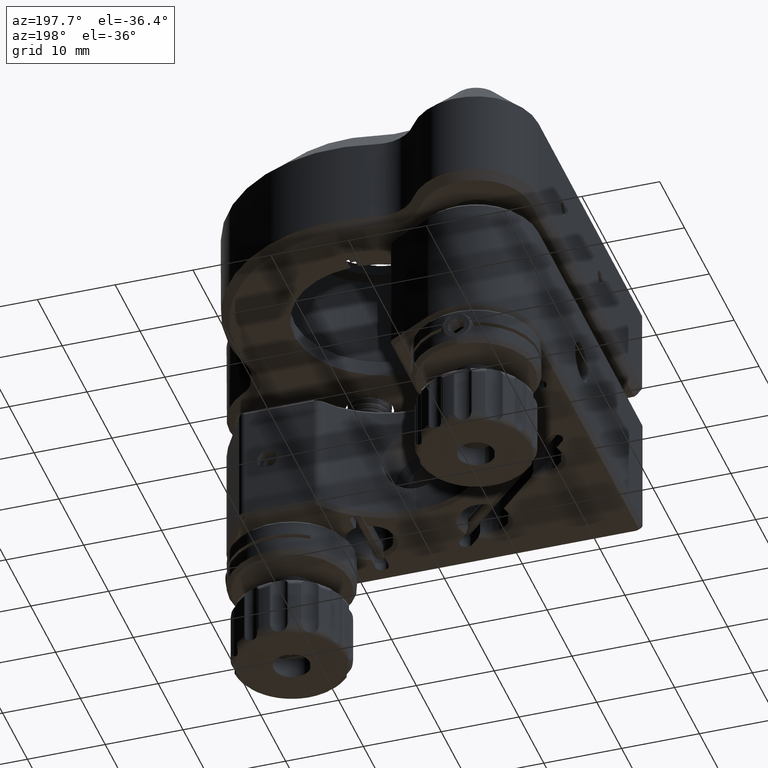
[diagram: clean part render]
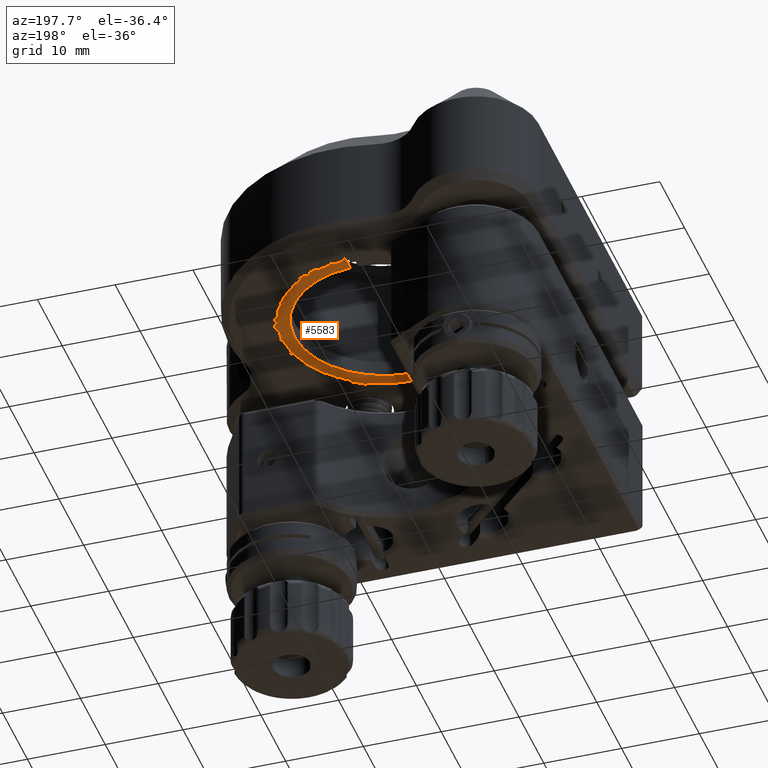
[diagram: same view with one face highlighted and labeled with its STEP entity id]
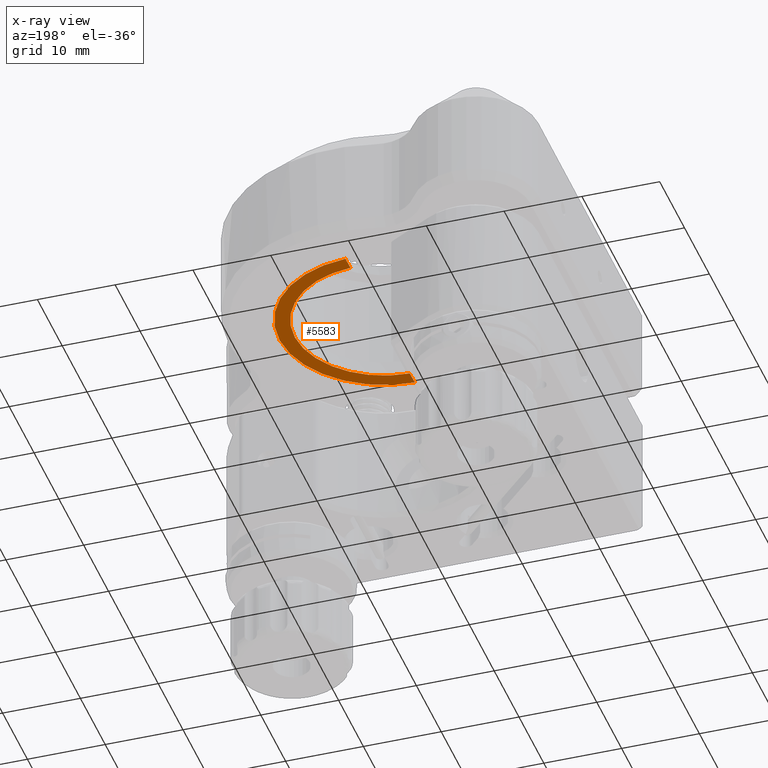
[diagram: x-ray of the same camera — body ghosted, the highlighted face saturated]
A machine part, auxiliary view. The second image highlights one B-rep face of the part: STEP entity #5583.
The next image is the same camera in x-ray: the body ghosted, the highlighted face saturated — about 1% of this face is hidden behind the body in this view.
In plain terms, the highlighted planar face has unit normal (0, 0, -1).
Its self-contained STEP definition (entity closure, byte-faithful):
#360 = CARTESIAN_POINT ( 'NONE',  ( 7.115734108170173933, 8.380968622971844084, 42.30000000000001137 ) ) ;
#632 = LINE ( 'NONE', #9452, #9214 ) ;
#766 = EDGE_CURVE ( 'NONE', #26432, #4791, #3823, .T. ) ;
#872 = DIRECTION ( 'NONE',  ( -0.9999244718367928941, 0.01229026533118099569, 0.000000000000000000 ) ) ;
#1593 = EDGE_LOOP ( 'NONE', ( #15627, #14942, #2049, #12605, #21864 ) ) ;
#1973 = DIRECTION ( 'NONE',  ( -0.9999244718367927831, 0.01229026533118095753, 0.000000000000000000 ) ) ;
#2049 = ORIENTED_EDGE ( 'NONE', *, *, #8530, .F. ) ;
#2221 = AXIS2_PLACEMENT_3D ( 'NONE', #8200, #3722, #1973 ) ;
#2840 = DIRECTION ( 'NONE',  ( -0.01229026533118109457, -0.9999244718367927831, -0.000000000000000000 ) ) ;
#3722 = DIRECTION ( 'NONE',  ( 0.000000000000000000, 0.000000000000000000, -1.000000000000000000 ) ) ;
#3823 = CIRCLE ( 'NONE', #11187, 13.46250000000000213 ) ;
#4791 = VERTEX_POINT ( 'NONE', #17009 ) ;
#5583 = ADVANCED_FACE ( 'NONE', ( #23745 ), #12794, .T. ) ;
#5798 = VECTOR ( 'NONE', #2840, 1000.000000000000114 ) ;
#6002 = EDGE_CURVE ( 'NONE', #18569, #20672, #14020, .T. ) ;
#6377 = CIRCLE ( 'NONE', #2221, 11.50000000000000178 ) ;
#7321 = LINE ( 'NONE', #360, #5798 ) ;
#7923 = CARTESIAN_POINT ( 'NONE',  ( 7.082504251566286158, 5.677418624782997192, 42.30000000000001137 ) ) ;
#8005 = VERTEX_POINT ( 'NONE', #7923 ) ;
#8200 = CARTESIAN_POINT ( 'NONE',  ( 6.441337617372800750, -5.804693783097224724, 42.30000000000001137 ) ) ;
#8530 = EDGE_CURVE ( 'NONE', #20672, #4791, #7321, .T. ) ;
#9214 = VECTOR ( 'NONE', #11321, 1000.000000000000114 ) ;
#9452 = CARTESIAN_POINT ( 'NONE',  ( 7.115734108170173933, 8.380968622971844084, 42.30000000000001137 ) ) ;
#10924 = DIRECTION ( 'NONE',  ( 0.000000000000000000, 0.000000000000000000, -1.000000000000000000 ) ) ;
#11187 = AXIS2_PLACEMENT_3D ( 'NONE', #18333, #16178, #872 ) ;
#11220 = CARTESIAN_POINT ( 'NONE',  ( 6.800095455016109014, -17.29909645630862869, 42.30000000000001137 ) ) ;
#11321 = DIRECTION ( 'NONE',  ( -0.01229026533118109457, -0.9999244718367927831, -0.000000000000000000 ) ) ;
#11352 = DIRECTION ( 'NONE',  ( -0.9999244718367927831, 0.01229026533118097488, 0.000000000000000000 ) ) ;
#12605 = ORIENTED_EDGE ( 'NONE', *, *, #6002, .F. ) ;
#12794 = PLANE ( 'NONE',  #17684 ) ;
#14020 = CIRCLE ( 'NONE', #27821, 11.50000000000000178 ) ;
#14942 = ORIENTED_EDGE ( 'NONE', *, *, #766, .T. ) ;
#15081 = DIRECTION ( 'NONE',  ( -0.9999244718367927831, 0.01229026533118095753, 0.000000000000000000 ) ) ;
#15627 = ORIENTED_EDGE ( 'NONE', *, *, #18233, .F. ) ;
#16178 = DIRECTION ( 'NONE',  ( 0.000000000000000000, 0.000000000000000000, -1.000000000000000000 ) ) ;
#16959 = CARTESIAN_POINT ( 'NONE',  ( 6.441337617372800750, -5.804693783097224724, 42.30000000000001137 ) ) ;
#17009 = CARTESIAN_POINT ( 'NONE',  ( 6.775956311391237108, -19.26303456417471693, 42.30000000000001137 ) ) ;
#17684 = AXIS2_PLACEMENT_3D ( 'NONE', #17691, #10924, #11352 ) ;
#17691 = CARTESIAN_POINT ( 'NONE',  ( 6.441337617372800750, -5.804693783097224724, 42.30000000000001137 ) ) ;
#18233 = EDGE_CURVE ( 'NONE', #26432, #8005, #632, .T. ) ;
#18333 = CARTESIAN_POINT ( 'NONE',  ( 6.441337617372800750, -5.804693783097224724, 42.30000000000001137 ) ) ;
#18569 = VERTEX_POINT ( 'NONE', #20683 ) ;
#20672 = VERTEX_POINT ( 'NONE', #11220 ) ;
#20683 = CARTESIAN_POINT ( 'NONE',  ( 17.94046904349591642, -5.946031834405805405, 42.30000000000001137 ) ) ;
#21864 = ORIENTED_EDGE ( 'NONE', *, *, #28404, .F. ) ;
#23745 = FACE_OUTER_BOUND ( 'NONE', #1593, .T. ) ;
#24877 = CARTESIAN_POINT ( 'NONE',  ( 7.106643395191157175, 7.641356732649082772, 42.30000000000001137 ) ) ;
#26017 = DIRECTION ( 'NONE',  ( 0.000000000000000000, 0.000000000000000000, -1.000000000000000000 ) ) ;
#26432 = VERTEX_POINT ( 'NONE', #24877 ) ;
#27821 = AXIS2_PLACEMENT_3D ( 'NONE', #16959, #26017, #15081 ) ;
#28404 = EDGE_CURVE ( 'NONE', #8005, #18569, #6377, .T. ) ;